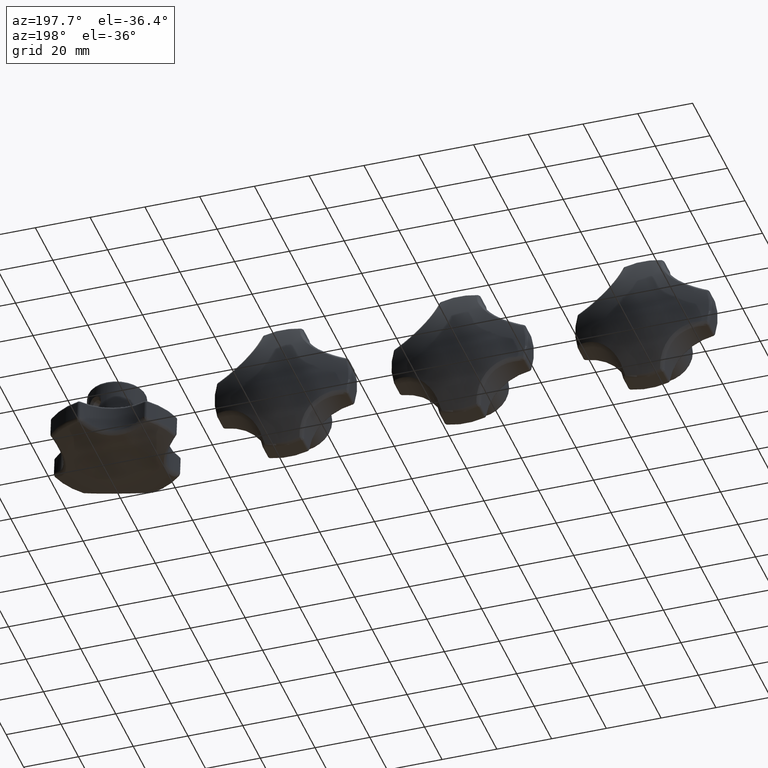
[diagram: clean part render]
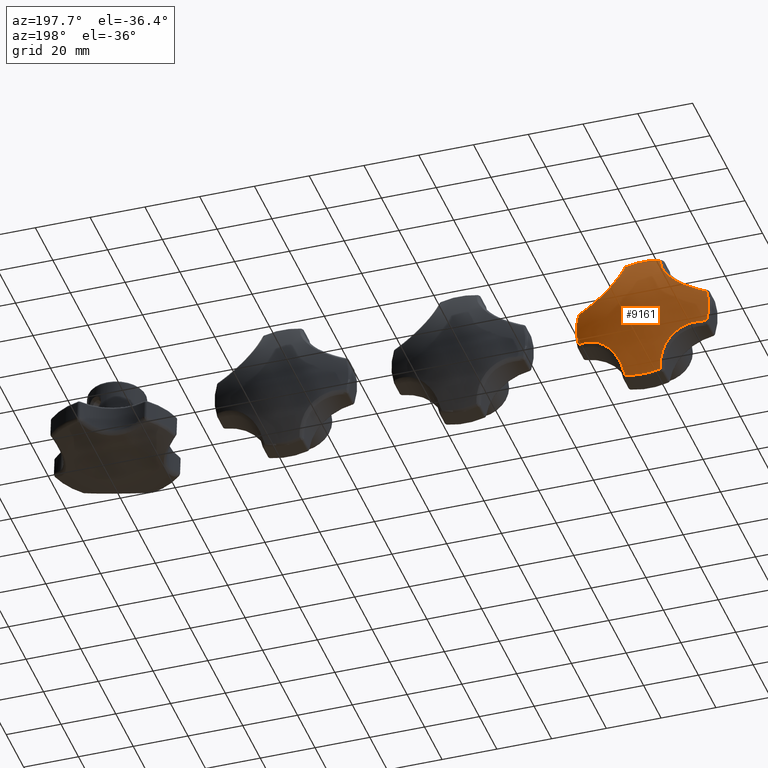
[diagram: same view with one face highlighted and labeled with its STEP entity id]
A machine part, auxiliary view. The second image highlights one B-rep face of the part: STEP entity #9161.
In plain terms, the highlighted spherical surface has radius 49.9918 mm.
Its self-contained STEP definition (entity closure, byte-faithful):
#47=SPHERICAL_SURFACE('',#9954,49.9917910447761);
#536=CIRCLE('',#9927,24.2269271610828);
#539=CIRCLE('',#9931,24.2269271610828);
#541=CIRCLE('',#9934,24.2269271610828);
#543=CIRCLE('',#9937,24.2269271610828);
#1553=FACE_OUTER_BOUND('',#2193,.T.);
#2193=EDGE_LOOP('',(#6623,#6624,#6625,#6626,#6627,#6628,#6629,#6630));
#2807=B_SPLINE_CURVE_WITH_KNOTS('',3,(#15827,#15828,#15829,#15830,#15831,
#15832,#15833),.UNSPECIFIED.,.F.,.F.,(4,1,1,1,4),(-2.9594164247736,-2.22982229453461,
-1.46272141088756,-1.07917096906403,-0.349580303559456),.UNSPECIFIED.);
#2809=B_SPLINE_CURVE_WITH_KNOTS('',3,(#15879,#15880,#15881,#15882,#15883,
#15884,#15885),.UNSPECIFIED.,.F.,.F.,(4,1,1,1,4),(-3.38190116680442,-2.65230559213999,
-1.88520470849293,-1.5016542666694,-0.772065057037199),.UNSPECIFIED.);
#2811=B_SPLINE_CURVE_WITH_KNOTS('',3,(#15931,#15932,#15933,#15934,#15935,
#15936,#15937),.UNSPECIFIED.,.F.,.F.,(4,1,1,1,4),(-2.95941494721603,-2.22982229453461,
-1.46272141088756,-0.695620527240503,-0.349591158057525),.UNSPECIFIED.);
#2813=B_SPLINE_CURVE_WITH_KNOTS('',3,(#15983,#15984,#15985,#15986,#15987,
#15988,#15989),.UNSPECIFIED.,.F.,.F.,(4,1,1,1,4),(-3.38189968903274,-2.65230559213999,
-1.88520470849293,-1.11810382484588,-0.772076041848908),.UNSPECIFIED.);
#3875=VERTEX_POINT('',#15184);
#3880=VERTEX_POINT('',#15267);
#3885=VERTEX_POINT('',#15350);
#3890=VERTEX_POINT('',#15433);
#3895=VERTEX_POINT('',#15516);
#3900=VERTEX_POINT('',#15599);
#3905=VERTEX_POINT('',#15682);
#3910=VERTEX_POINT('',#15765);
#4876=EDGE_CURVE('',#3875,#3910,#536,.T.);
#4879=EDGE_CURVE('',#3910,#3905,#2807,.T.);
#4881=EDGE_CURVE('',#3905,#3900,#539,.T.);
#4883=EDGE_CURVE('',#3900,#3895,#2809,.T.);
#4885=EDGE_CURVE('',#3895,#3890,#541,.T.);
#4887=EDGE_CURVE('',#3890,#3885,#2811,.T.);
#4889=EDGE_CURVE('',#3885,#3880,#543,.T.);
#4891=EDGE_CURVE('',#3880,#3875,#2813,.T.);
#6623=ORIENTED_EDGE('',*,*,#4876,.F.);
#6624=ORIENTED_EDGE('',*,*,#4891,.F.);
#6625=ORIENTED_EDGE('',*,*,#4889,.F.);
#6626=ORIENTED_EDGE('',*,*,#4887,.F.);
#6627=ORIENTED_EDGE('',*,*,#4885,.F.);
#6628=ORIENTED_EDGE('',*,*,#4883,.F.);
#6629=ORIENTED_EDGE('',*,*,#4881,.F.);
#6630=ORIENTED_EDGE('',*,*,#4879,.F.);
#9161=ADVANCED_FACE('',(#1553),#47,.T.);
#9927=AXIS2_PLACEMENT_3D('',#15783,#11605,#11606);
#9931=AXIS2_PLACEMENT_3D('',#15836,#11613,#11614);
#9934=AXIS2_PLACEMENT_3D('',#15888,#11619,#11620);
#9937=AXIS2_PLACEMENT_3D('',#15940,#11625,#11626);
#9954=AXIS2_PLACEMENT_3D('',#16024,#11668,#11669);
#11605=DIRECTION('center_axis',(0.,-1.,0.));
#11606=DIRECTION('ref_axis',(1.,0.,2.22044604925031E-16));
#11613=DIRECTION('center_axis',(0.,-1.,0.));
#11614=DIRECTION('ref_axis',(-3.82856869892695E-16,0.,1.));
#11619=DIRECTION('center_axis',(0.,-1.,0.));
#11620=DIRECTION('ref_axis',(-1.,0.,-3.21624529935327E-16));
#11625=DIRECTION('center_axis',(0.,-1.,0.));
#11626=DIRECTION('ref_axis',(2.83276944882399E-16,0.,-1.));
#11668=DIRECTION('center_axis',(6.12323399573677E-17,0.,1.));
#11669=DIRECTION('ref_axis',(1.,0.,0.));
#15184=CARTESIAN_POINT('',(23.3813402914851,8.43732022216076,-6.34483457957647));
#15267=CARTESIAN_POINT('',(6.34483457957648,8.43732022216076,-23.3813402914851));
#15350=CARTESIAN_POINT('',(-6.34483457957647,8.43732022216076,-23.3813402914851));
#15433=CARTESIAN_POINT('',(-23.3813402914851,8.43732022216076,-6.34483457957648));
#15516=CARTESIAN_POINT('',(-23.3813402914851,8.43732022216076,6.34483457957646));
#15599=CARTESIAN_POINT('',(-6.34483457957648,8.43732022216076,23.3813402914851));
#15682=CARTESIAN_POINT('',(6.34483457957647,8.43732022216076,23.3813402914851));
#15765=CARTESIAN_POINT('',(23.3813402914851,8.43732022216077,6.34483457957648));
#15783=CARTESIAN_POINT('Origin',(0.,8.43732022216076,0.));
#15827=CARTESIAN_POINT('Ctrl Pts',(23.3813315556597,8.43729151360069,6.34487630245335));
#15828=CARTESIAN_POINT('Ctrl Pts',(21.1678350858476,9.57422429471071,6.66371834413211));
#15829=CARTESIAN_POINT('Ctrl Pts',(16.4674295552511,11.4272420873792,8.12110610155896));
#15830=CARTESIAN_POINT('Ctrl Pts',(11.3203381994601,11.9508245541887,12.3146923087183));
#15831=CARTESIAN_POINT('Ctrl Pts',(7.75702227889469,10.9449928318512,17.6812013160261));
#15832=CARTESIAN_POINT('Ctrl Pts',(6.66435340935412,9.57379108195326,21.1683367478901));
#15833=CARTESIAN_POINT('Ctrl Pts',(6.34492756915971,8.43727855082632,23.3813323128333));
#15836=CARTESIAN_POINT('Origin',(0.,8.43732022216076,0.));
#15879=CARTESIAN_POINT('Ctrl Pts',(-6.34487643958726,8.43729144620641,23.381331540843));
#15880=CARTESIAN_POINT('Ctrl Pts',(-6.66373297799371,9.57426887725774,21.1677462909007));
#15881=CARTESIAN_POINT('Ctrl Pts',(-8.12123938499766,11.4273008378908,16.4671886337668));
#15882=CARTESIAN_POINT('Ctrl Pts',(-12.3148652452775,11.9508194800506,11.3201750484393));
#15883=CARTESIAN_POINT('Ctrl Pts',(-17.6814255694337,10.9449280800082,7.75691401227316));
#15884=CARTESIAN_POINT('Ctrl Pts',(-21.1684268815311,9.57374590949891,6.6643384886573));
#15885=CARTESIAN_POINT('Ctrl Pts',(-23.3813323298427,8.43727862438733,6.34492742592481));
#15888=CARTESIAN_POINT('Origin',(0.,8.43732022216076,0.));
#15931=CARTESIAN_POINT('Ctrl Pts',(-23.3813331234884,8.43729716029041,-6.34486706904021));
#15932=CARTESIAN_POINT('Ctrl Pts',(-21.168031353064,9.57421074233209,-6.66356819610298));
#15933=CARTESIAN_POINT('Ctrl Pts',(-16.4715724693397,11.4268982262609,-8.11801478475662));
#15934=CARTESIAN_POINT('Ctrl Pts',(-10.261230566694,12.058761505575,-13.176056250047));
#15935=CARTESIAN_POINT('Ctrl Pts',(-7.25285858853801,10.5404306206974,-18.9145018749819));
#15936=CARTESIAN_POINT('Ctrl Pts',(-6.49524599077493,8.97649417847358,-22.3324360839597));
#15937=CARTESIAN_POINT('Ctrl Pts',(-6.344768930935,8.43735009538127,-23.3813462042962));
#15940=CARTESIAN_POINT('Origin',(0.,8.43732022216076,0.));
#15983=CARTESIAN_POINT('Ctrl Pts',(6.34486727439921,8.43729705704296,-23.3813331000775));
#15984=CARTESIAN_POINT('Ctrl Pts',(6.66358375562911,9.5742548157743,-21.1679424801488));
#15985=CARTESIAN_POINT('Ctrl Pts',(8.11816673218638,11.426946619606,-16.47133015271));
#15986=CARTESIAN_POINT('Ctrl Pts',(13.176210544563,12.0587585856221,-10.2610851136847));
#15987=CARTESIAN_POINT('Ctrl Pts',(18.9148106715953,10.5403141176889,-7.25275267699564));
#15988=CARTESIAN_POINT('Ctrl Pts',(22.3324888496987,8.97646874805763,-6.49523587024699));
#15989=CARTESIAN_POINT('Ctrl Pts',(23.381346262161,8.43735031554625,-6.34476854649597));
#16024=CARTESIAN_POINT('Origin',(0.,-35.2917910447761,0.));